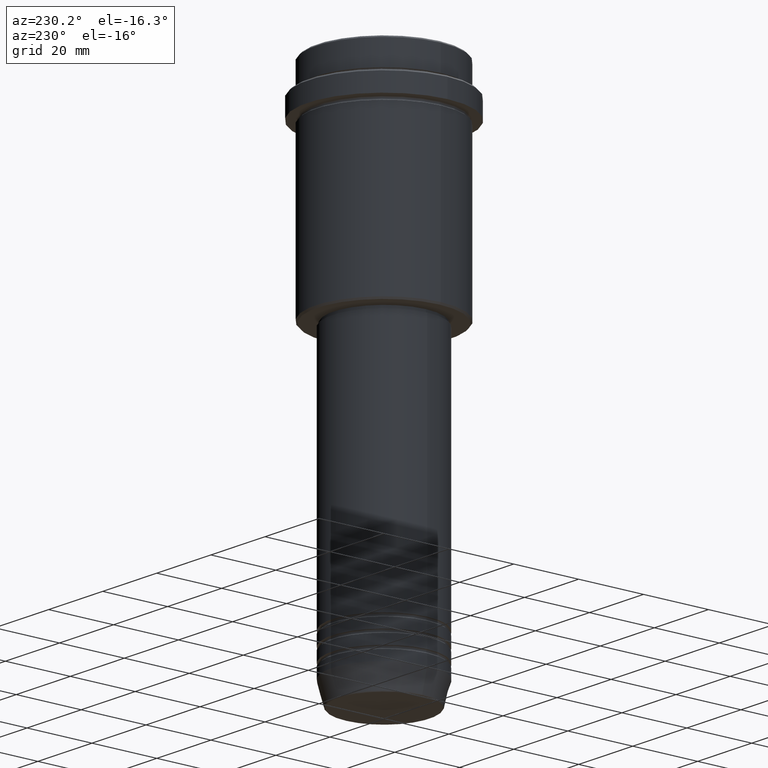
[diagram: clean part render]
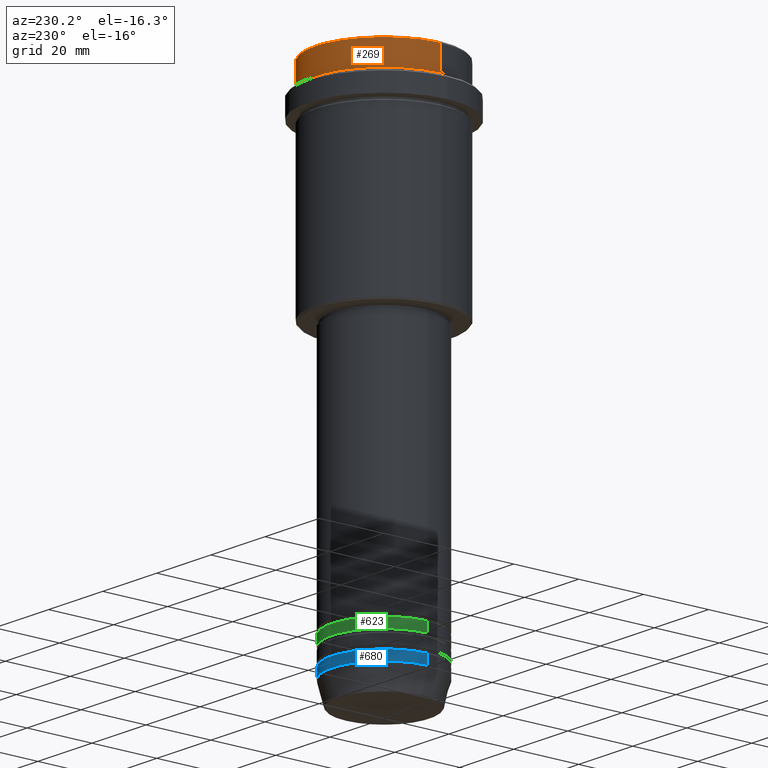
[diagram: same view with three faces highlighted in distinct colors, each labeled with its STEP entity id]
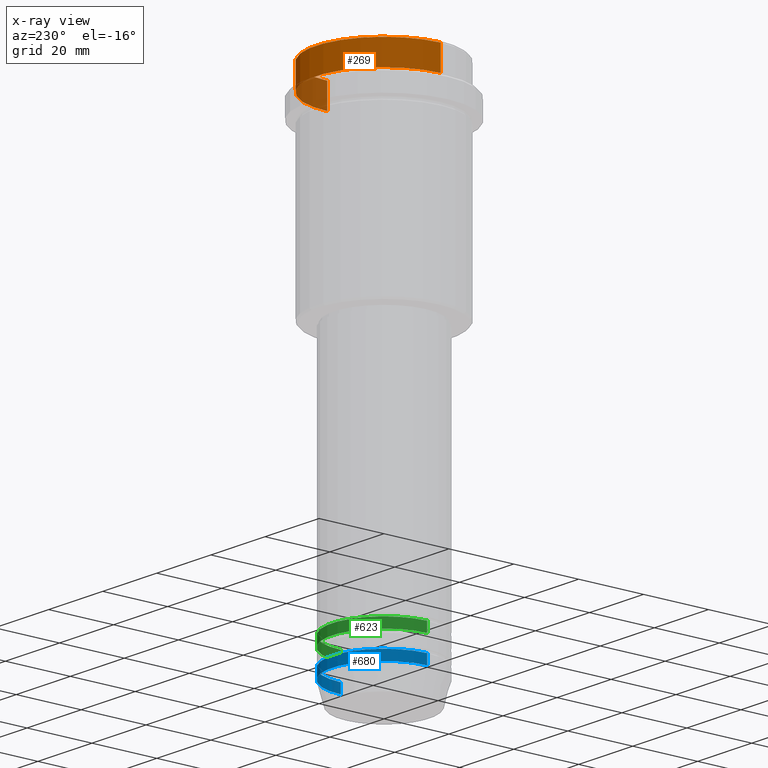
[diagram: x-ray of the same camera — body ghosted, the three highlighted faces saturated]
A machine part, auxiliary view with three faces highlighted in distinct colors.
The next image is the same camera in x-ray (body ghosted, the three faces saturated) — at least one of them is partly hidden behind the body in this view.
Their STEP definitions:

[orange] entity #269 — the highlighted cylindrical surface (partial cylindrical patch) has radius 21 mm, axis along (-0, -0, 1).
#12 = EDGE_LOOP ( 'NONE', ( #321, #229, #456, #608 ) ) ;
#65 = DIRECTION ( 'NONE',  ( -0.000000000000000000, -0.000000000000000000, 1.000000000000000000 ) ) ;
#77 = VERTEX_POINT ( 'NONE', #955 ) ;
#89 = DIRECTION ( 'NONE',  ( -0.000000000000000000, -0.000000000000000000, 1.000000000000000000 ) ) ;
#115 = CIRCLE ( 'NONE', #576, 21.00000000000000000 ) ;
#134 = VERTEX_POINT ( 'NONE', #1188 ) ;
#186 = DIRECTION ( 'NONE',  ( 1.000000000000000000, 0.000000000000000000, 0.000000000000000000 ) ) ;
#229 = ORIENTED_EDGE ( 'NONE', *, *, #863, .T. ) ;
#269 = ADVANCED_FACE ( 'NONE', ( #338 ), #679, .T. ) ;
#305 = CARTESIAN_POINT ( 'NONE',  ( 0.000000000000000000, 0.000000000000000000, -7.999999999999998224 ) ) ;
#321 = ORIENTED_EDGE ( 'NONE', *, *, #532, .T. ) ;
#338 = FACE_OUTER_BOUND ( 'NONE', #12, .T. ) ;
#341 = AXIS2_PLACEMENT_3D ( 'NONE', #983, #1108, #1115 ) ;
#362 = DIRECTION ( 'NONE',  ( 0.000000000000000000, 0.000000000000000000, -1.000000000000000000 ) ) ;
#409 = CARTESIAN_POINT ( 'NONE',  ( -21.00000000000000000, 2.571758278209441661E-15, -0.5000000000000386358 ) ) ;
#456 = ORIENTED_EDGE ( 'NONE', *, *, #1206, .T. ) ;
#510 = VERTEX_POINT ( 'NONE', #536 ) ;
#532 = EDGE_CURVE ( 'NONE', #134, #510, #115, .T. ) ;
#536 = CARTESIAN_POINT ( 'NONE',  ( -21.00000000000000000, 2.571758278209441661E-15, -7.999999999999998224 ) ) ;
#544 = VERTEX_POINT ( 'NONE', #409 ) ;
#558 = EDGE_CURVE ( 'NONE', #134, #77, #839, .T. ) ;
#576 = AXIS2_PLACEMENT_3D ( 'NONE', #305, #1398, #186 ) ;
#591 = LINE ( 'NONE', #597, #1119 ) ;
#597 = CARTESIAN_POINT ( 'NONE',  ( -21.00000000000000000, 2.571758278209441661E-15, 0.000000000000000000 ) ) ;
#608 = ORIENTED_EDGE ( 'NONE', *, *, #558, .F. ) ;
#679 = CYLINDRICAL_SURFACE ( 'NONE', #341, 21.00000000000000000 ) ;
#839 = LINE ( 'NONE', #1276, #1260 ) ;
#863 = EDGE_CURVE ( 'NONE', #510, #544, #591, .T. ) ;
#875 = AXIS2_PLACEMENT_3D ( 'NONE', #921, #362, #1014 ) ;
#921 = CARTESIAN_POINT ( 'NONE',  ( 0.000000000000000000, 0.000000000000000000, -0.5000000000000386358 ) ) ;
#955 = CARTESIAN_POINT ( 'NONE',  ( 21.00000000000000000, 0.000000000000000000, -0.5000000000000386358 ) ) ;
#983 = CARTESIAN_POINT ( 'NONE',  ( 0.000000000000000000, 0.000000000000000000, 0.000000000000000000 ) ) ;
#1014 = DIRECTION ( 'NONE',  ( 1.000000000000000000, 0.000000000000000000, 0.000000000000000000 ) ) ;
#1061 = CIRCLE ( 'NONE', #875, 21.00000000000000000 ) ;
#1108 = DIRECTION ( 'NONE',  ( -0.000000000000000000, -0.000000000000000000, 1.000000000000000000 ) ) ;
#1115 = DIRECTION ( 'NONE',  ( 1.000000000000000000, 0.000000000000000000, 0.000000000000000000 ) ) ;
#1119 = VECTOR ( 'NONE', #65, 1000.000000000000000 ) ;
#1188 = CARTESIAN_POINT ( 'NONE',  ( 21.00000000000000000, 0.000000000000000000, -7.999999999999998224 ) ) ;
#1206 = EDGE_CURVE ( 'NONE', #544, #77, #1061, .T. ) ;
#1260 = VECTOR ( 'NONE', #89, 1000.000000000000000 ) ;
#1276 = CARTESIAN_POINT ( 'NONE',  ( 21.00000000000000000, 0.000000000000000000, 0.000000000000000000 ) ) ;
#1398 = DIRECTION ( 'NONE',  ( -0.000000000000000000, -0.000000000000000000, 1.000000000000000000 ) ) ;

[blue] entity #680 — the highlighted cylindrical surface (partial cylindrical patch) has radius 16 mm, axis along (-0, -0, 1).
#68 = VERTEX_POINT ( 'NONE', #1163 ) ;
#94 = CIRCLE ( 'NONE', #1075, 16.00000000000000000 ) ;
#100 = EDGE_CURVE ( 'NONE', #1308, #105, #849, .T. ) ;
#105 = VERTEX_POINT ( 'NONE', #1064 ) ;
#190 = CARTESIAN_POINT ( 'NONE',  ( 0.000000000000000000, 0.000000000000000000, -153.0000000000000000 ) ) ;
#205 = ORIENTED_EDGE ( 'NONE', *, *, #984, .T. ) ;
#219 = DIRECTION ( 'NONE',  ( 1.000000000000000000, 0.000000000000000000, 0.000000000000000000 ) ) ;
#237 = ORIENTED_EDGE ( 'NONE', *, *, #100, .F. ) ;
#256 = ORIENTED_EDGE ( 'NONE', *, *, #1314, .F. ) ;
#257 = AXIS2_PLACEMENT_3D ( 'NONE', #878, #884, #219 ) ;
#372 = VECTOR ( 'NONE', #410, 1000.000000000000000 ) ;
#392 = DIRECTION ( 'NONE',  ( 1.000000000000000000, 0.000000000000000000, 0.000000000000000000 ) ) ;
#396 = ORIENTED_EDGE ( 'NONE', *, *, #1134, .T. ) ;
#410 = DIRECTION ( 'NONE',  ( -0.000000000000000000, -0.000000000000000000, 1.000000000000000000 ) ) ;
#442 = FACE_OUTER_BOUND ( 'NONE', #731, .T. ) ;
#474 = CARTESIAN_POINT ( 'NONE',  ( 16.00000000000000000, 0.000000000000000000, -153.0000000000000000 ) ) ;
#556 = CIRCLE ( 'NONE', #923, 16.00000000000000000 ) ;
#568 = CYLINDRICAL_SURFACE ( 'NONE', #257, 16.00000000000000000 ) ;
#580 = VECTOR ( 'NONE', #1363, 1000.000000000000000 ) ;
#680 = ADVANCED_FACE ( 'NONE', ( #442 ), #568, .T. ) ;
#731 = EDGE_LOOP ( 'NONE', ( #205, #396, #256, #237 ) ) ;
#818 = VERTEX_POINT ( 'NONE', #1019 ) ;
#849 = LINE ( 'NONE', #1060, #372 ) ;
#878 = CARTESIAN_POINT ( 'NONE',  ( 0.000000000000000000, 0.000000000000000000, 0.000000000000000000 ) ) ;
#884 = DIRECTION ( 'NONE',  ( -0.000000000000000000, -0.000000000000000000, 1.000000000000000000 ) ) ;
#909 = CARTESIAN_POINT ( 'NONE',  ( 0.000000000000000000, 0.000000000000000000, -150.0000000000000000 ) ) ;
#923 = AXIS2_PLACEMENT_3D ( 'NONE', #909, #989, #1332 ) ;
#984 = EDGE_CURVE ( 'NONE', #1308, #818, #94, .T. ) ;
#989 = DIRECTION ( 'NONE',  ( -0.000000000000000000, -0.000000000000000000, 1.000000000000000000 ) ) ;
#1019 = CARTESIAN_POINT ( 'NONE',  ( -16.00000000000000000, 1.959434878635765131E-15, -153.0000000000000000 ) ) ;
#1060 = CARTESIAN_POINT ( 'NONE',  ( 16.00000000000000000, 0.000000000000000000, 0.000000000000000000 ) ) ;
#1064 = CARTESIAN_POINT ( 'NONE',  ( 16.00000000000000000, 0.000000000000000000, -150.0000000000000000 ) ) ;
#1075 = AXIS2_PLACEMENT_3D ( 'NONE', #190, #1270, #392 ) ;
#1134 = EDGE_CURVE ( 'NONE', #818, #68, #1138, .T. ) ;
#1138 = LINE ( 'NONE', #1147, #580 ) ;
#1147 = CARTESIAN_POINT ( 'NONE',  ( -16.00000000000000000, 1.959434878635765131E-15, 0.000000000000000000 ) ) ;
#1163 = CARTESIAN_POINT ( 'NONE',  ( -16.00000000000000000, 1.959434878635765131E-15, -150.0000000000000000 ) ) ;
#1270 = DIRECTION ( 'NONE',  ( -0.000000000000000000, -0.000000000000000000, 1.000000000000000000 ) ) ;
#1308 = VERTEX_POINT ( 'NONE', #474 ) ;
#1314 = EDGE_CURVE ( 'NONE', #105, #68, #556, .T. ) ;
#1332 = DIRECTION ( 'NONE',  ( 1.000000000000000000, 0.000000000000000000, 0.000000000000000000 ) ) ;
#1363 = DIRECTION ( 'NONE',  ( -0.000000000000000000, -0.000000000000000000, 1.000000000000000000 ) ) ;

[green] entity #623 — the highlighted cylindrical surface (partial cylindrical patch) has radius 16 mm, axis along (-0, -0, 1).
#7 = AXIS2_PLACEMENT_3D ( 'NONE', #330, #103, #982 ) ;
#19 = EDGE_CURVE ( 'NONE', #564, #1221, #1029, .T. ) ;
#23 = CARTESIAN_POINT ( 'NONE',  ( 0.000000000000000000, 0.000000000000000000, -144.9999999999999147 ) ) ;
#51 = CARTESIAN_POINT ( 'NONE',  ( 16.00000000000000000, 0.000000000000000000, 0.000000000000000000 ) ) ;
#80 = AXIS2_PLACEMENT_3D ( 'NONE', #162, #799, #1230 ) ;
#103 = DIRECTION ( 'NONE',  ( -0.000000000000000000, -0.000000000000000000, 1.000000000000000000 ) ) ;
#138 = DIRECTION ( 'NONE',  ( -0.000000000000000000, -0.000000000000000000, 1.000000000000000000 ) ) ;
#162 = CARTESIAN_POINT ( 'NONE',  ( 0.000000000000000000, 0.000000000000000000, -141.9999999999999147 ) ) ;
#172 = CIRCLE ( 'NONE', #80, 16.00000000000000000 ) ;
#204 = EDGE_CURVE ( 'NONE', #564, #1106, #486, .T. ) ;
#206 = AXIS2_PLACEMENT_3D ( 'NONE', #23, #1005, #673 ) ;
#288 = CARTESIAN_POINT ( 'NONE',  ( -16.00000000000000000, 1.959434878635765131E-15, 0.000000000000000000 ) ) ;
#330 = CARTESIAN_POINT ( 'NONE',  ( 0.000000000000000000, 0.000000000000000000, 0.000000000000000000 ) ) ;
#346 = VECTOR ( 'NONE', #138, 1000.000000000000000 ) ;
#373 = CARTESIAN_POINT ( 'NONE',  ( -16.00000000000000000, 1.959434878635765131E-15, -141.9999999999999147 ) ) ;
#381 = CARTESIAN_POINT ( 'NONE',  ( 16.00000000000000000, 0.000000000000000000, -141.9999999999999147 ) ) ;
#391 = ORIENTED_EDGE ( 'NONE', *, *, #1226, .F. ) ;
#412 = EDGE_CURVE ( 'NONE', #1106, #453, #1231, .T. ) ;
#414 = CARTESIAN_POINT ( 'NONE',  ( 16.00000000000000000, 0.000000000000000000, -144.9999999999999147 ) ) ;
#453 = VERTEX_POINT ( 'NONE', #373 ) ;
#486 = CIRCLE ( 'NONE', #206, 16.00000000000000000 ) ;
#489 = DIRECTION ( 'NONE',  ( -0.000000000000000000, -0.000000000000000000, 1.000000000000000000 ) ) ;
#549 = ORIENTED_EDGE ( 'NONE', *, *, #19, .F. ) ;
#564 = VERTEX_POINT ( 'NONE', #414 ) ;
#623 = ADVANCED_FACE ( 'NONE', ( #944 ), #651, .T. ) ;
#651 = CYLINDRICAL_SURFACE ( 'NONE', #7, 16.00000000000000000 ) ;
#673 = DIRECTION ( 'NONE',  ( 1.000000000000000000, 0.000000000000000000, 0.000000000000000000 ) ) ;
#771 = ORIENTED_EDGE ( 'NONE', *, *, #204, .T. ) ;
#791 = ORIENTED_EDGE ( 'NONE', *, *, #412, .T. ) ;
#799 = DIRECTION ( 'NONE',  ( -0.000000000000000000, -0.000000000000000000, 1.000000000000000000 ) ) ;
#904 = EDGE_LOOP ( 'NONE', ( #771, #791, #391, #549 ) ) ;
#912 = CARTESIAN_POINT ( 'NONE',  ( -16.00000000000000000, 1.959434878635765131E-15, -144.9999999999999147 ) ) ;
#944 = FACE_OUTER_BOUND ( 'NONE', #904, .T. ) ;
#982 = DIRECTION ( 'NONE',  ( 1.000000000000000000, 0.000000000000000000, 0.000000000000000000 ) ) ;
#1005 = DIRECTION ( 'NONE',  ( -0.000000000000000000, -0.000000000000000000, 1.000000000000000000 ) ) ;
#1029 = LINE ( 'NONE', #51, #1352 ) ;
#1106 = VERTEX_POINT ( 'NONE', #912 ) ;
#1221 = VERTEX_POINT ( 'NONE', #381 ) ;
#1226 = EDGE_CURVE ( 'NONE', #1221, #453, #172, .T. ) ;
#1230 = DIRECTION ( 'NONE',  ( 1.000000000000000000, 0.000000000000000000, 0.000000000000000000 ) ) ;
#1231 = LINE ( 'NONE', #288, #346 ) ;
#1352 = VECTOR ( 'NONE', #489, 1000.000000000000000 ) ;